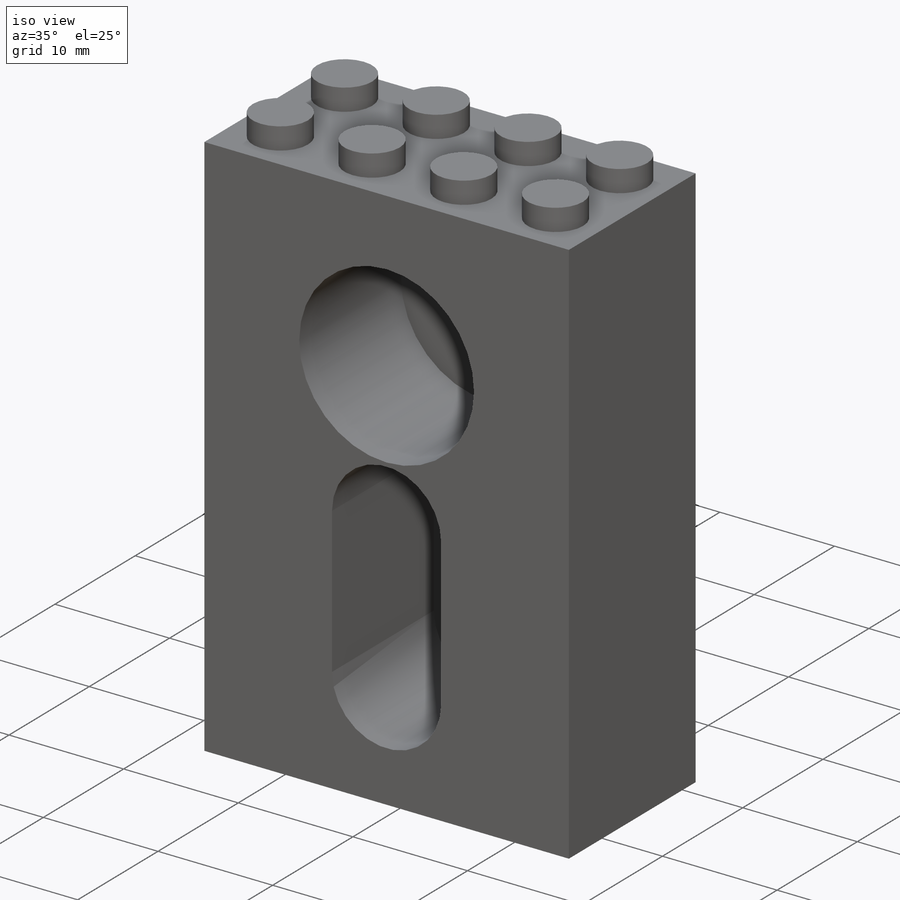
[diagram: iso view]
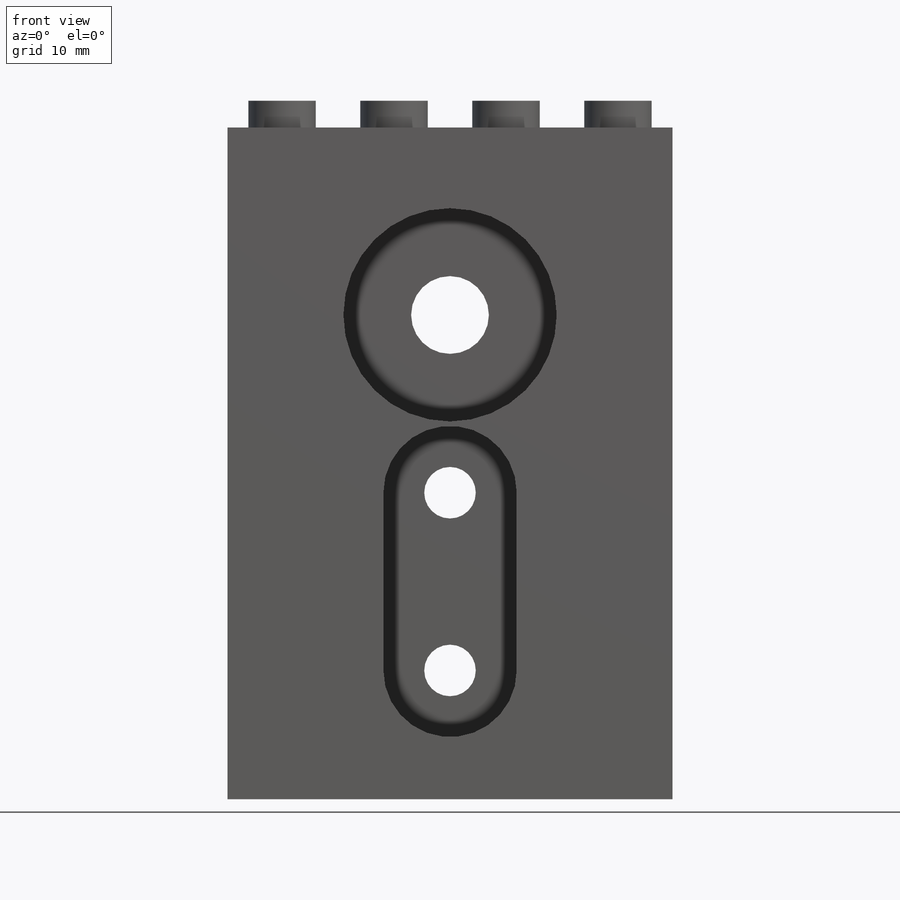
[diagram: front view]
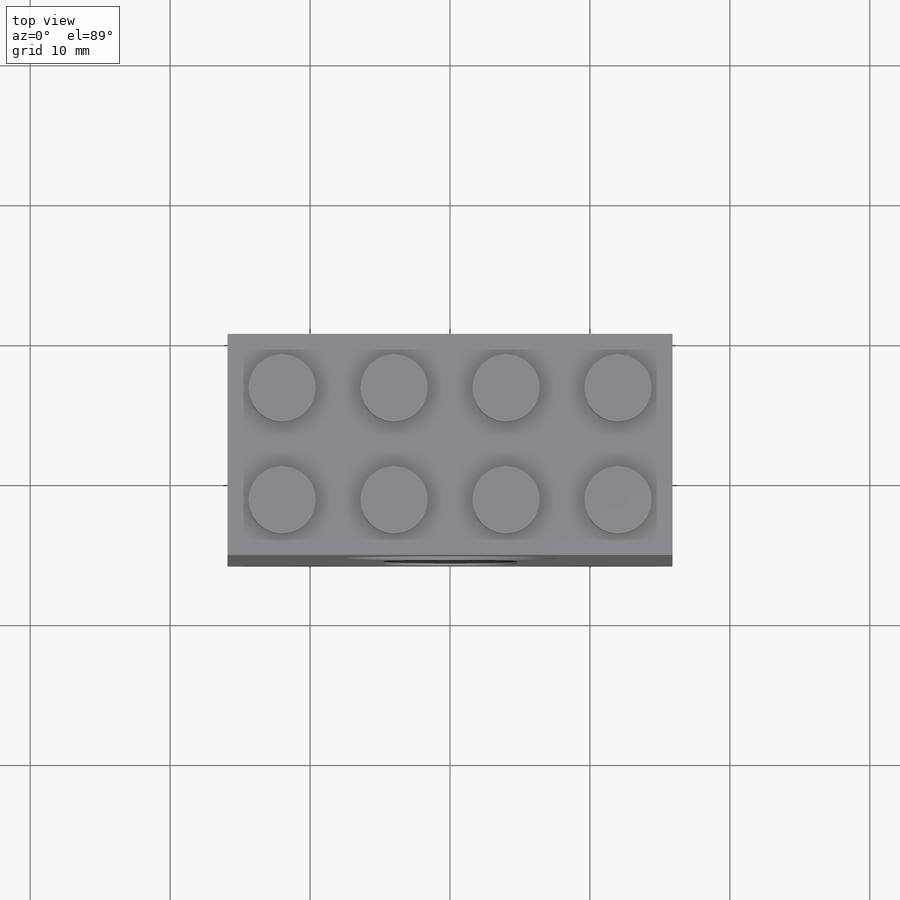
[diagram: top view]
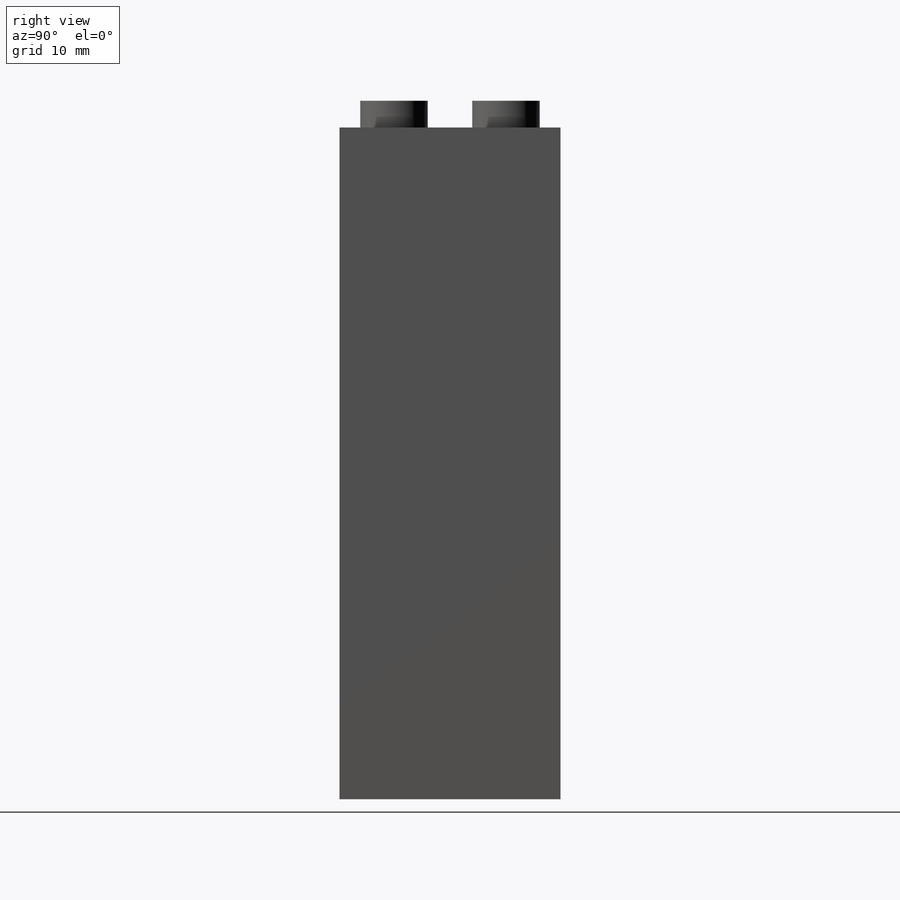
[diagram: right view]
SOLIDWORKS PART (.sldprt)
format: sldprt  version: not decoded by parser v0  size: 262,656 bytes
history: native  units: mm
features: sketch x6, cut_extrude x4, extrude x2, material x1 (+11 scaffold rows collapsed)
feature tree (24):
  scaffold x11  (default folders/planes/origin — collapsed)
  material  "Material <not specified>"
  sketch  "Sketch1"  dims[D1=48.0mm D2=31.8mm]
  extrude  "Boss-Extrude1"  Depth=15.8mm
  sketch  "Sketch2"  dims[D1=4.7625mm D4=15.24mm D2=12.7mm D3=12.7mm D5=13.4mm D6=15.9mm D7=15.9mm]
  cut_extrude  "Cut-Extrude1"  Depth=12.7mm
  sketch  "Sketch3"  dims[c1.D1=5.5563mm c1.D2=3.683mm c1.D3=3.683mm c2.D1=0.0mm]
  cut_extrude  "Cut-Extrude2"  Depth=12.7mm
  sketch  "Sketch4"  dims[D1=0.0mm D2=0.0mm]
  cut_extrude  "Cut-Extrude3"  Depth=1.905mm
  sketch  "Sketch5"  dims[D2=4.82mm D3=4.82mm D1=8.0mm D4=3.9mm D5=3.9mm D6=3.9mm D8=3.9mm D7=4.0]
  extrude  "Boss-Extrude2"  Depth=1.905mm
  sketch  "Sketch6"  dims[D6=6.52mm D1=1.22mm D2=1.22mm D3=1.22mm D4=1.22mm D5=7.9mm D7=7.9mm D9=7.9mm D8=3.0]
  cut_extrude  "Cut-Extrude4"  Depth=1.905mm
decode coverage: 12 of 12 modeling features carry decoded parameters
note: suppression state not decoded; provenance and decode notes live in map.json
